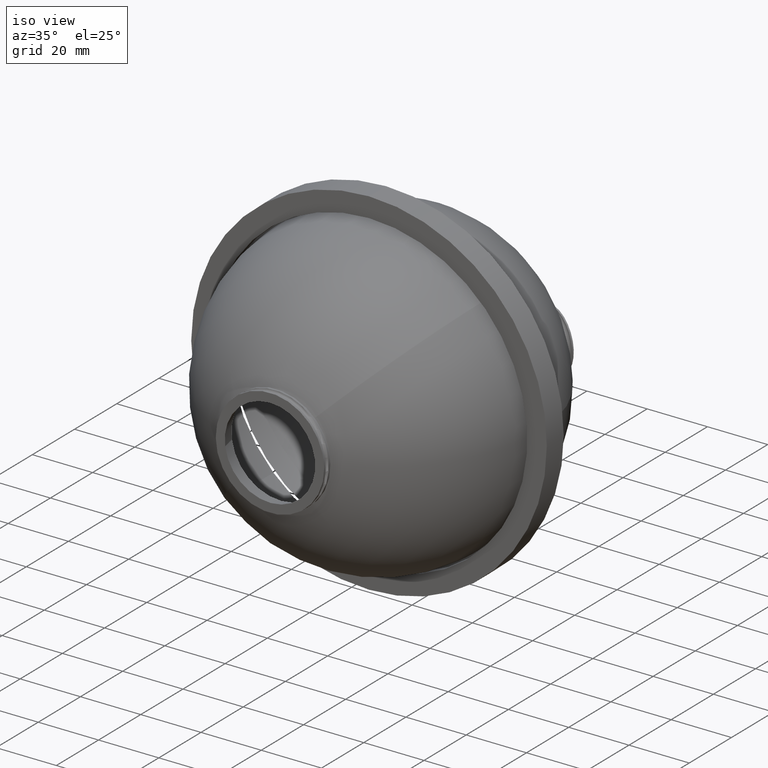
[diagram: clean part render]
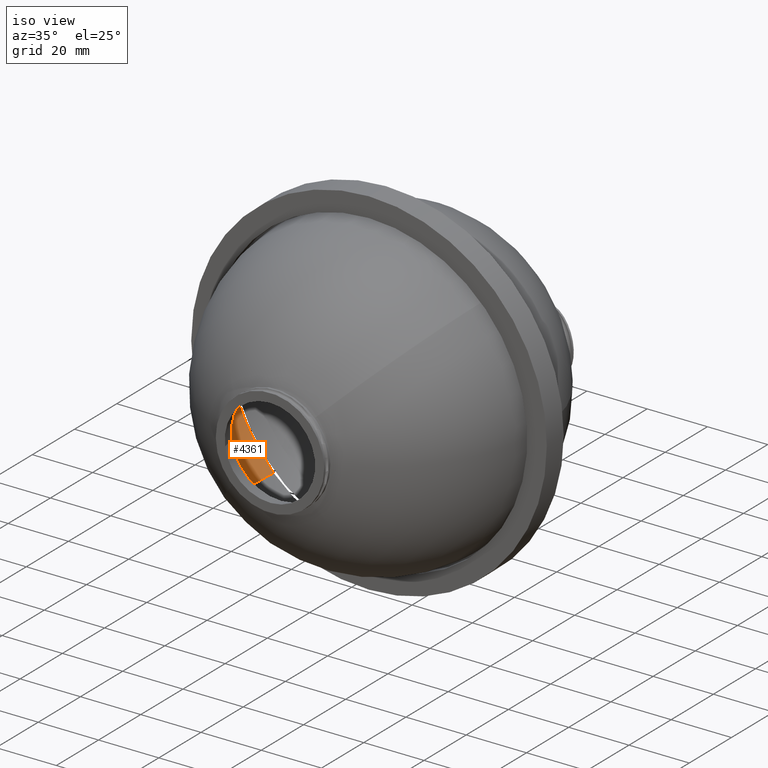
[diagram: same view with one face highlighted and labeled with its STEP entity id]
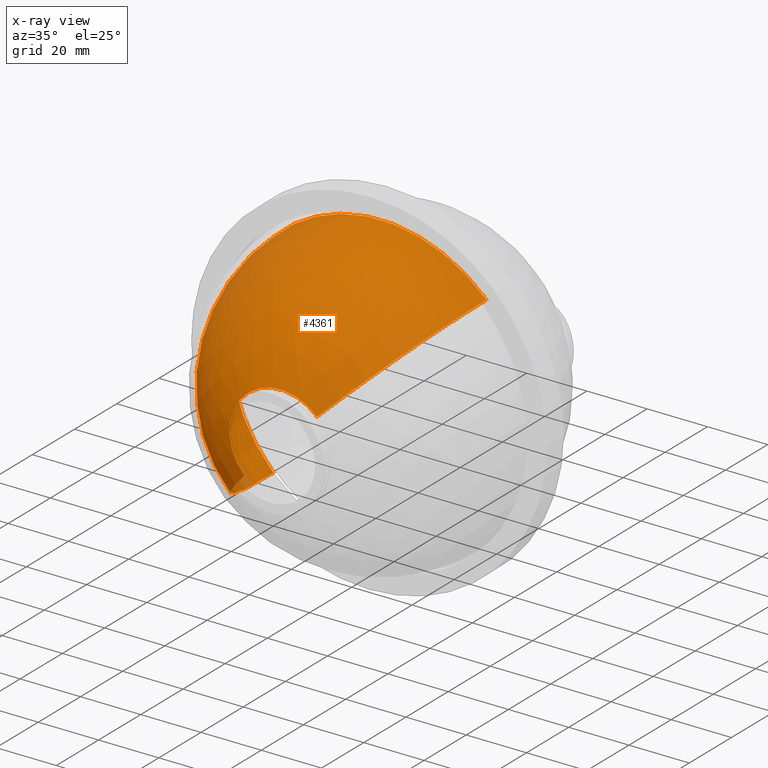
[diagram: x-ray of the same camera — body ghosted, the highlighted face saturated]
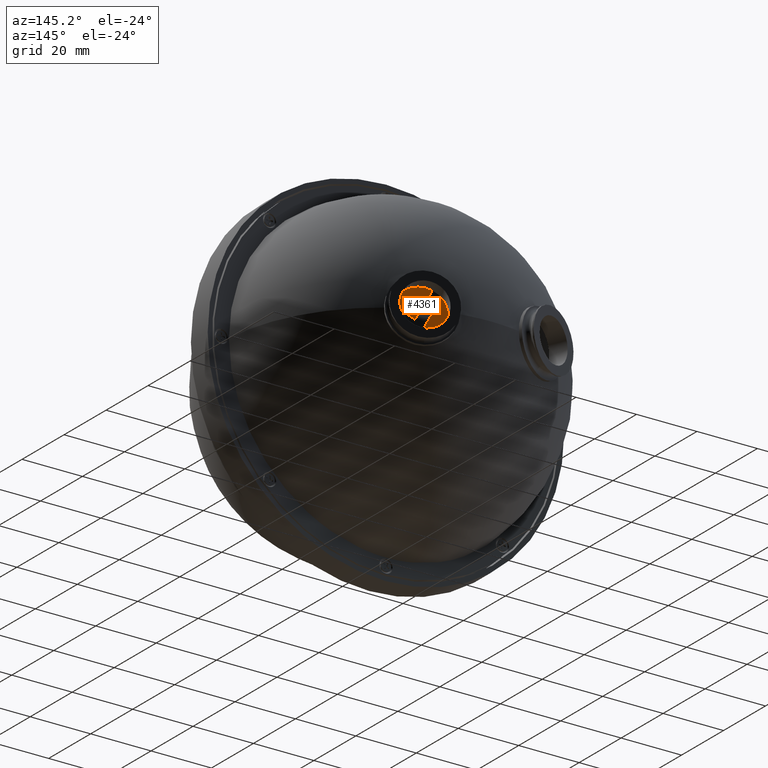
[diagram: same view with one face highlighted and labeled with its STEP entity id]
A machine part, iso view. The second image highlights one B-rep face of the part: STEP entity #4361.
The next image is the same camera in x-ray: the body ghosted, the highlighted face saturated — about 1% of this face is hidden behind the body in this view.
A second angle (auxiliary view) of the same face is appended — the face is thin or edge-on in the first view.
In plain terms, the highlighted spherical surface has radius 50 mm.
Its self-contained STEP definition (entity closure, byte-faithful):
#8 = ORIENTED_EDGE ( 'NONE', *, *, #881, .F. ) ;
#148 = VERTEX_POINT ( 'NONE', #5310 ) ;
#366 = CARTESIAN_POINT ( 'NONE',  ( 8.484018949608364224, -18.71086588718419819, -3.227405511845264343E-13 ) ) ;
#592 = ORIENTED_EDGE ( 'NONE', *, *, #2923, .F. ) ;
#792 = EDGE_LOOP ( 'NONE', ( #8, #5156, #592, #3597 ) ) ;
#881 = EDGE_CURVE ( 'NONE', #6126, #4492, #4256, .T. ) ;
#998 = AXIS2_PLACEMENT_3D ( 'NONE', #3234, #2653, #4329 ) ;
#1057 = CARTESIAN_POINT ( 'NONE',  ( -3.536796330562815172, -65.73213766921917056, -12.02081528017187928 ) ) ;
#1261 = DIRECTION ( 'NONE',  ( -0.7071067811865363595, 0.000000000000000000, -0.7071067811865586750 ) ) ;
#1332 = DIRECTION ( 'NONE',  ( -0.000000000000000000, -1.000000000000000000, -0.000000000000000000 ) ) ;
#1544 = CIRCLE ( 'NONE', #3277, 50.00000000000000711 ) ;
#2144 = FACE_OUTER_BOUND ( 'NONE', #792, .T. ) ;
#2210 = CARTESIAN_POINT ( 'NONE',  ( 8.484018949608364224, -18.71086588718419819, -3.227405511845264343E-13 ) ) ;
#2653 = DIRECTION ( 'NONE',  ( 0.7071067811865584529, 0.000000000000000000, -0.7071067811865365815 ) ) ;
#2655 = CIRCLE ( 'NONE', #4378, 50.00000000000000711 ) ;
#2908 = DIRECTION ( 'NONE',  ( -0.7071067811865585639, 0.000000000000000000, 0.7071067811865365815 ) ) ;
#2923 = EDGE_CURVE ( 'NONE', #148, #4425, #4807, .T. ) ;
#3234 = CARTESIAN_POINT ( 'NONE',  ( 8.484018949608364224, -18.71086588718419819, -3.227405511845264343E-13 ) ) ;
#3277 = AXIS2_PLACEMENT_3D ( 'NONE', #2210, #6318, #1261 ) ;
#3310 = AXIS2_PLACEMENT_3D ( 'NONE', #5492, #1332, #2908 ) ;
#3362 = CARTESIAN_POINT ( 'NONE',  ( 20.50483422977954717, -65.73213766921917056, 12.02081528017123446 ) ) ;
#3538 = DIRECTION ( 'NONE',  ( 0.000000000000000000, 1.000000000000000000, 0.000000000000000000 ) ) ;
#3597 = ORIENTED_EDGE ( 'NONE', *, *, #6657, .F. ) ;
#4256 = CIRCLE ( 'NONE', #6293, 17.00000000000001421 ) ;
#4270 = SPHERICAL_SURFACE ( 'NONE', #998, 49.99999999999999289 ) ;
#4329 = DIRECTION ( 'NONE',  ( 0.7071067811865364705, 0.000000000000000000, 0.7071067811865584529 ) ) ;
#4361 = ADVANCED_FACE ( 'NONE', ( #2144 ), #4270, .F. ) ;
#4378 = AXIS2_PLACEMENT_3D ( 'NONE', #366, #6034, #4387 ) ;
#4387 = DIRECTION ( 'NONE',  ( 0.7071067811865366926, 0.000000000000000000, 0.7071067811865585639 ) ) ;
#4397 = EDGE_CURVE ( 'NONE', #6126, #4425, #1544, .T. ) ;
#4425 = VERTEX_POINT ( 'NONE', #4839 ) ;
#4492 = VERTEX_POINT ( 'NONE', #3362 ) ;
#4807 = CIRCLE ( 'NONE', #3310, 50.00000000000003553 ) ;
#4839 = CARTESIAN_POINT ( 'NONE',  ( -26.87132010971846796, -18.71086588718419819, -35.35533905932827281 ) ) ;
#5156 = ORIENTED_EDGE ( 'NONE', *, *, #4397, .T. ) ;
#5310 = CARTESIAN_POINT ( 'NONE',  ( 43.83935800893519996, -18.71086588718419819, 35.35533905932761201 ) ) ;
#5492 = CARTESIAN_POINT ( 'NONE',  ( 8.484018949608364224, -18.71086588718419819, -3.227405511845264343E-13 ) ) ;
#5587 = DIRECTION ( 'NONE',  ( -0.7071067811865585639, 0.000000000000000000, 0.7071067811865364705 ) ) ;
#6034 = DIRECTION ( 'NONE',  ( -0.7071067811865586750, 0.000000000000000000, 0.7071067811865365815 ) ) ;
#6126 = VERTEX_POINT ( 'NONE', #1057 ) ;
#6293 = AXIS2_PLACEMENT_3D ( 'NONE', #6302, #3538, #5587 ) ;
#6302 = CARTESIAN_POINT ( 'NONE',  ( 8.484018949608364224, -65.73213766921917056, -3.227405511845264343E-13 ) ) ;
#6318 = DIRECTION ( 'NONE',  ( 0.7071067811865587860, 0.000000000000000000, -0.7071067811865364705 ) ) ;
#6657 = EDGE_CURVE ( 'NONE', #4492, #148, #2655, .T. ) ;